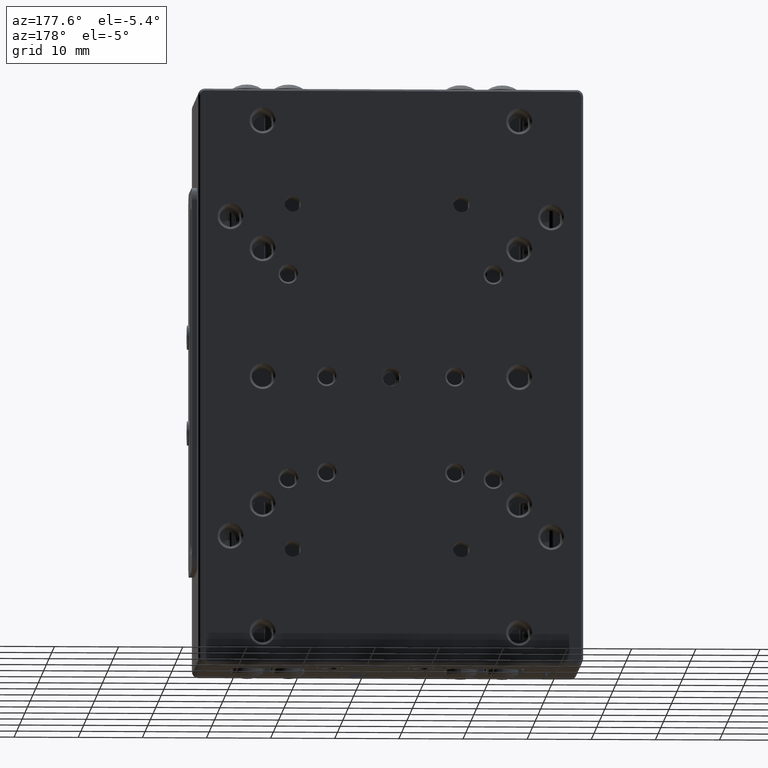
[diagram: clean part render]
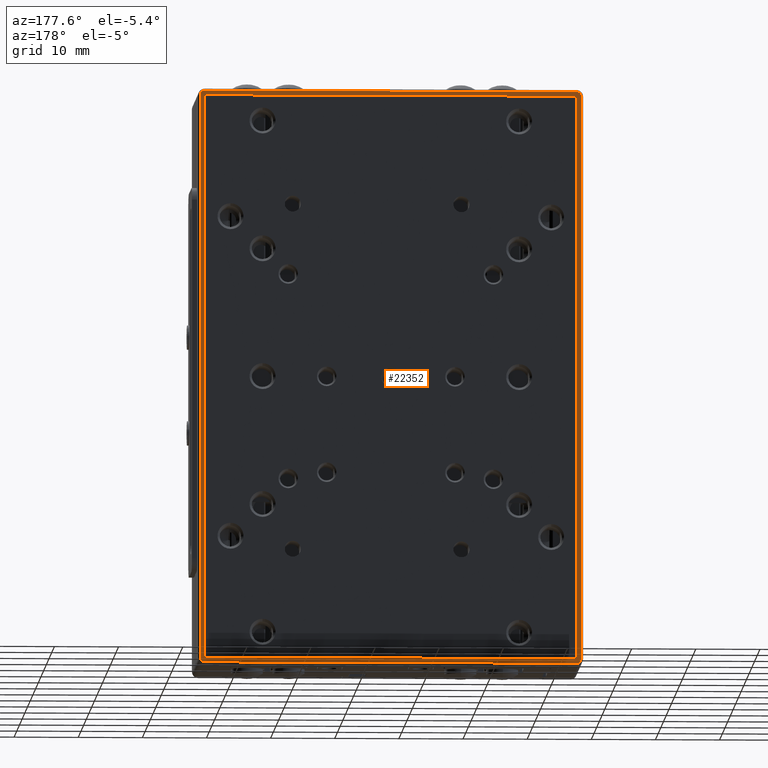
[diagram: same view with one face highlighted and labeled with its STEP entity id]
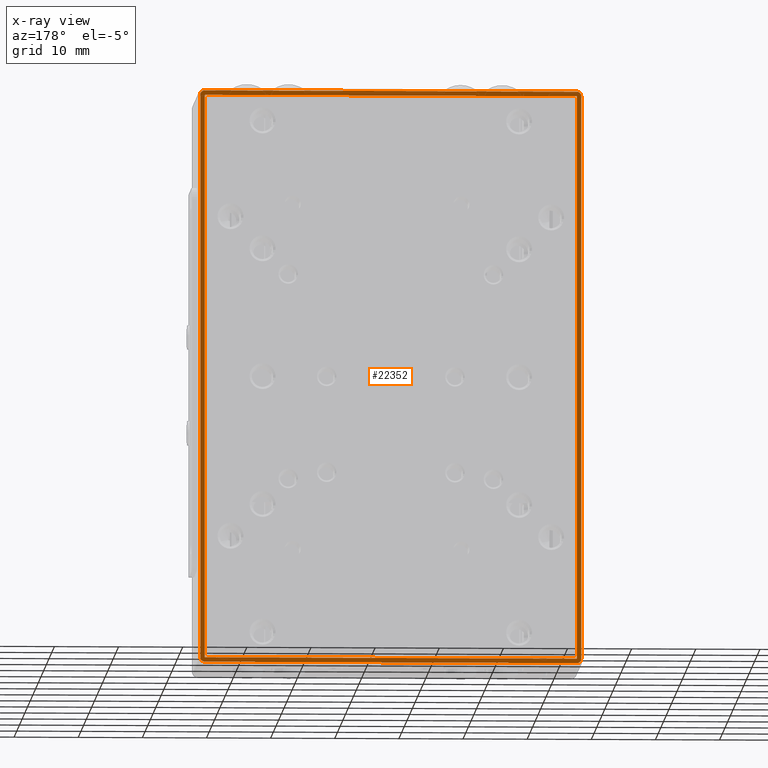
[diagram: x-ray of the same camera — body ghosted, the highlighted face saturated]
A machine part, auxiliary view. The second image highlights one B-rep face of the part: STEP entity #22352.
The next image is the same camera in x-ray: the body ghosted, the highlighted face saturated — about 0% of this face is hidden behind the body in this view.
In plain terms, the highlighted planar face has unit normal (-0, -1, 0).
Its self-contained STEP definition (entity closure, byte-faithful):
#863 = CARTESIAN_POINT ( 'NONE',  ( 0.000000000000000000, 12.00000000000000000, 90.00000000000000000 ) ) ;
#872 = DIRECTION ( 'NONE',  ( 0.000000000000000000, 0.000000000000000000, -1.000000000000000000 ) ) ;
#1503 = ORIENTED_EDGE ( 'NONE', *, *, #25770, .T. ) ;
#1621 = DIRECTION ( 'NONE',  ( 0.000000000000000000, 1.000000000000000000, 0.000000000000000000 ) ) ;
#1643 = LINE ( 'NONE', #7694, #19355 ) ;
#1672 = VERTEX_POINT ( 'NONE', #17074 ) ;
#1971 = ORIENTED_EDGE ( 'NONE', *, *, #24409, .T. ) ;
#2148 = CARTESIAN_POINT ( 'NONE',  ( 1.000000000000000000, 12.00000000000000000, 89.00000000000000000 ) ) ;
#2818 = FACE_OUTER_BOUND ( 'NONE', #6485, .T. ) ;
#2966 = DIRECTION ( 'NONE',  ( 0.000000000000000000, -1.000000000000000000, 0.000000000000000000 ) ) ;
#3155 = CARTESIAN_POINT ( 'NONE',  ( 59.00000000000000000, 12.00000000000000000, 89.70000000000000284 ) ) ;
#3207 = EDGE_CURVE ( 'NONE', #27029, #8910, #23121, .T. ) ;
#4061 = DIRECTION ( 'NONE',  ( 0.000000000000000000, 1.000000000000000000, 0.000000000000000000 ) ) ;
#4140 = VERTEX_POINT ( 'NONE', #6813 ) ;
#4348 = CARTESIAN_POINT ( 'NONE',  ( 1.000000000000000000, 12.00000000000000000, 1.000000000000000000 ) ) ;
#4533 = FACE_BOUND ( 'NONE', #25589, .T. ) ;
#4736 = ORIENTED_EDGE ( 'NONE', *, *, #8907, .T. ) ;
#4935 = CARTESIAN_POINT ( 'NONE',  ( 59.00000000000000000, 12.00000000000000000, 1.000000000000000000 ) ) ;
#5226 = CARTESIAN_POINT ( 'NONE',  ( 0.000000000000000000, 12.00000000000000000, 0.2999999999999944933 ) ) ;
#5503 = CARTESIAN_POINT ( 'NONE',  ( 59.00000000000000000, 12.00000000000000000, 1.000000000000000000 ) ) ;
#5561 = CARTESIAN_POINT ( 'NONE',  ( 1.000000000000000000, 12.00000000000000000, 89.70000000000000284 ) ) ;
#5790 = CARTESIAN_POINT ( 'NONE',  ( 59.00000000000000000, 12.00000000000000000, 89.00000000000000000 ) ) ;
#5824 = VERTEX_POINT ( 'NONE', #10794 ) ;
#5925 = CARTESIAN_POINT ( 'NONE',  ( 59.70000000000000284, 12.00000000000000000, 90.00000000000000000 ) ) ;
#6243 = LINE ( 'NONE', #7942, #20431 ) ;
#6276 = CARTESIAN_POINT ( 'NONE',  ( 0.2999999999999999889, 12.00000000000000000, 1.000000000000000000 ) ) ;
#6485 = EDGE_LOOP ( 'NONE', ( #7816, #4736, #12791, #9113, #1503, #1971, #25022, #14485 ) ) ;
#6813 = CARTESIAN_POINT ( 'NONE',  ( 59.00000000000000000, 12.00000000000000000, 0.2999999999999944933 ) ) ;
#7673 = CARTESIAN_POINT ( 'NONE',  ( 59.00000000000000000, 12.00000000000000000, 89.00000000000000000 ) ) ;
#7694 = CARTESIAN_POINT ( 'NONE',  ( 1.000000000000000000, 12.00000000000000000, 1.000000000000000000 ) ) ;
#7816 = ORIENTED_EDGE ( 'NONE', *, *, #10048, .T. ) ;
#7942 = CARTESIAN_POINT ( 'NONE',  ( 0.2999999999999999889, 12.00000000000000000, 90.00000000000000000 ) ) ;
#8026 = CARTESIAN_POINT ( 'NONE',  ( 1.000000000000000000, 12.00000000000000000, 1.000000000000000000 ) ) ;
#8321 = LINE ( 'NONE', #5925, #22752 ) ;
#8907 = EDGE_CURVE ( 'NONE', #24869, #5824, #13276, .T. ) ;
#8910 = VERTEX_POINT ( 'NONE', #5561 ) ;
#9113 = ORIENTED_EDGE ( 'NONE', *, *, #22533, .T. ) ;
#9385 = ORIENTED_EDGE ( 'NONE', *, *, #18707, .F. ) ;
#9457 = LINE ( 'NONE', #4935, #21270 ) ;
#9479 = DIRECTION ( 'NONE',  ( 0.000000000000000000, 0.000000000000000000, -1.000000000000000000 ) ) ;
#9698 = ORIENTED_EDGE ( 'NONE', *, *, #20390, .F. ) ;
#9760 = DIRECTION ( 'NONE',  ( 0.000000000000000000, 1.000000000000000000, 0.000000000000000000 ) ) ;
#10048 = EDGE_CURVE ( 'NONE', #8910, #24869, #22474, .T. ) ;
#10342 = CARTESIAN_POINT ( 'NONE',  ( 59.00000000000000000, 12.00000000000000000, 1.000000000000000000 ) ) ;
#10794 = CARTESIAN_POINT ( 'NONE',  ( 59.70000000000000284, 12.00000000000000000, 89.00000000000000000 ) ) ;
#10919 = CIRCLE ( 'NONE', #23504, 0.6999999999999999556 ) ;
#11237 = DIRECTION ( 'NONE',  ( 1.000000000000000000, 0.000000000000000000, 0.000000000000000000 ) ) ;
#11327 = EDGE_CURVE ( 'NONE', #5824, #16757, #8321, .T. ) ;
#12791 = ORIENTED_EDGE ( 'NONE', *, *, #11327, .T. ) ;
#13276 = CIRCLE ( 'NONE', #22263, 0.7000000000000061728 ) ;
#13550 = EDGE_CURVE ( 'NONE', #19857, #17139, #9457, .T. ) ;
#14485 = ORIENTED_EDGE ( 'NONE', *, *, #3207, .T. ) ;
#14540 = CIRCLE ( 'NONE', #22187, 0.6999999999999999556 ) ;
#15532 = CARTESIAN_POINT ( 'NONE',  ( 59.70000000000000284, 12.00000000000000000, 1.000000000000000000 ) ) ;
#15663 = VERTEX_POINT ( 'NONE', #25171 ) ;
#15785 = DIRECTION ( 'NONE',  ( -1.000000000000000000, 0.000000000000000000, 1.196361017915039732E-16 ) ) ;
#16259 = DIRECTION ( 'NONE',  ( 0.000000000000000000, 0.000000000000000000, -1.000000000000000000 ) ) ;
#16644 = EDGE_CURVE ( 'NONE', #19434, #27029, #6243, .T. ) ;
#16757 = VERTEX_POINT ( 'NONE', #15532 ) ;
#16859 = VECTOR ( 'NONE', #22694, 1000.000000000000000 ) ;
#17074 = CARTESIAN_POINT ( 'NONE',  ( 1.000000000000000000, 12.00000000000000000, 0.2999999999999999889 ) ) ;
#17139 = VERTEX_POINT ( 'NONE', #8026 ) ;
#17338 = VECTOR ( 'NONE', #11237, 1000.000000000000000 ) ;
#17992 = DIRECTION ( 'NONE',  ( 1.000000000000000000, 0.000000000000000000, 0.000000000000000000 ) ) ;
#18145 = ORIENTED_EDGE ( 'NONE', *, *, #20678, .F. ) ;
#18707 = EDGE_CURVE ( 'NONE', #26778, #15663, #21692, .T. ) ;
#18796 = VECTOR ( 'NONE', #17992, 1000.000000000000000 ) ;
#18954 = CARTESIAN_POINT ( 'NONE',  ( 59.00000000000000000, 12.00000000000000000, 89.70000000000000284 ) ) ;
#19355 = VECTOR ( 'NONE', #27117, 1000.000000000000000 ) ;
#19434 = VERTEX_POINT ( 'NONE', #6276 ) ;
#19723 = PLANE ( 'NONE',  #22581 ) ;
#19857 = VERTEX_POINT ( 'NONE', #10342 ) ;
#20390 = EDGE_CURVE ( 'NONE', #15663, #19857, #23263, .T. ) ;
#20431 = VECTOR ( 'NONE', #27223, 1000.000000000000000 ) ;
#20678 = EDGE_CURVE ( 'NONE', #17139, #26778, #1643, .T. ) ;
#20682 = VECTOR ( 'NONE', #22973, 1000.000000000000000 ) ;
#21126 = DIRECTION ( 'NONE',  ( 0.000000000000000000, 0.000000000000000000, -1.000000000000000000 ) ) ;
#21270 = VECTOR ( 'NONE', #15785, 1000.000000000000000 ) ;
#21692 = LINE ( 'NONE', #26312, #18796 ) ;
#22083 = ORIENTED_EDGE ( 'NONE', *, *, #13550, .F. ) ;
#22187 = AXIS2_PLACEMENT_3D ( 'NONE', #4348, #4061, #9479 ) ;
#22263 = AXIS2_PLACEMENT_3D ( 'NONE', #7673, #1621, #16259 ) ;
#22352 = ADVANCED_FACE ( 'NONE', ( #2818, #4533 ), #19723, .F. ) ;
#22474 = LINE ( 'NONE', #3155, #17338 ) ;
#22533 = EDGE_CURVE ( 'NONE', #16757, #4140, #10919, .T. ) ;
#22581 = AXIS2_PLACEMENT_3D ( 'NONE', #863, #2966, #26349 ) ;
#22694 = DIRECTION ( 'NONE',  ( -1.000000000000000000, 0.000000000000000000, 0.000000000000000000 ) ) ;
#22752 = VECTOR ( 'NONE', #21126, 1000.000000000000000 ) ;
#22973 = DIRECTION ( 'NONE',  ( 0.000000000000000000, 0.000000000000000000, -1.000000000000000000 ) ) ;
#23121 = CIRCLE ( 'NONE', #25357, 0.7000000000000061728 ) ;
#23263 = LINE ( 'NONE', #5790, #20682 ) ;
#23504 = AXIS2_PLACEMENT_3D ( 'NONE', #5503, #24523, #24658 ) ;
#24409 = EDGE_CURVE ( 'NONE', #1672, #19434, #14540, .T. ) ;
#24522 = LINE ( 'NONE', #5226, #16859 ) ;
#24523 = DIRECTION ( 'NONE',  ( 0.000000000000000000, 1.000000000000000000, 0.000000000000000000 ) ) ;
#24658 = DIRECTION ( 'NONE',  ( 0.000000000000000000, 0.000000000000000000, -1.000000000000000000 ) ) ;
#24665 = CARTESIAN_POINT ( 'NONE',  ( 0.2999999999999934941, 12.00000000000000000, 89.00000000000000000 ) ) ;
#24807 = CARTESIAN_POINT ( 'NONE',  ( 1.000000000000000000, 12.00000000000000000, 89.00000000000000000 ) ) ;
#24869 = VERTEX_POINT ( 'NONE', #18954 ) ;
#25022 = ORIENTED_EDGE ( 'NONE', *, *, #16644, .T. ) ;
#25171 = CARTESIAN_POINT ( 'NONE',  ( 59.00000000000000000, 12.00000000000000000, 89.00000000000000000 ) ) ;
#25357 = AXIS2_PLACEMENT_3D ( 'NONE', #24807, #9760, #872 ) ;
#25589 = EDGE_LOOP ( 'NONE', ( #9385, #18145, #22083, #9698 ) ) ;
#25770 = EDGE_CURVE ( 'NONE', #4140, #1672, #24522, .T. ) ;
#26312 = CARTESIAN_POINT ( 'NONE',  ( 1.000000000000000000, 12.00000000000000000, 89.00000000000000000 ) ) ;
#26349 = DIRECTION ( 'NONE',  ( 0.000000000000000000, 0.000000000000000000, -1.000000000000000000 ) ) ;
#26778 = VERTEX_POINT ( 'NONE', #2148 ) ;
#27029 = VERTEX_POINT ( 'NONE', #24665 ) ;
#27117 = DIRECTION ( 'NONE',  ( 1.256688881744561868E-16, 0.000000000000000000, 1.000000000000000000 ) ) ;
#27223 = DIRECTION ( 'NONE',  ( 0.000000000000000000, 0.000000000000000000, 1.000000000000000000 ) ) ;